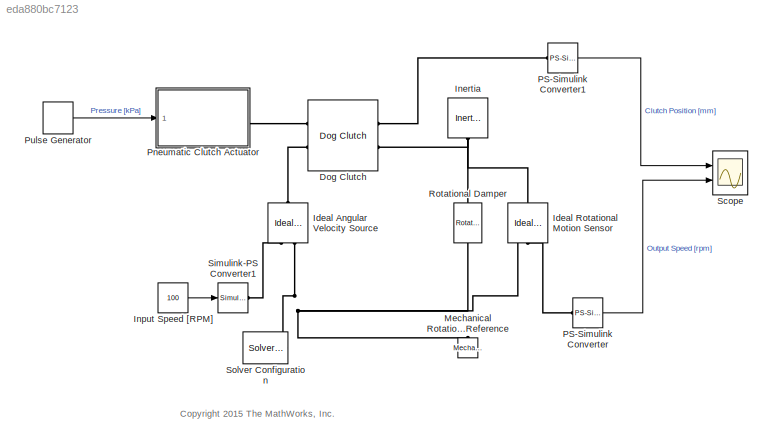
MODEL slx_eda880bc7123
KIND model
CONFIG AbsTol = 1e-3
CONFIG FixedStep = auto
CONFIG MaxStep = auto
CONFIG MinStep = auto
CONFIG RelTol = 1e-3
CONFIG SampleTimeConstraint = Unconstrained
CONFIG Solver = ode23t
CONFIG SolverMode = Auto
CONFIG SolverName = ode23t
CONFIG StartTime = 0.0
CONFIG StopTime = 10.0
BLOCK [Reference] Dog Clutch  REF=sdl_lib/Clutches/Dog Clutch
  ClassName = Simscape variant
  ComponentPath = sdl.clutches.dog_clutch
  ComponentVariantNames = Mechanical port shift linkage, Physical signal position input
  ComponentVariants = sdl.clutches.dog_clutch, sdl.clutches.dog_clutch_position_input
  LogSimulationData = off
  Ports = [0, 0, 0, 0, 0, 2, 2]
  SchemaVersion = 1
  SourceBlock = sdl_lib/Clutches/Dog Clutch
  SourceFile = sdl.clutches.dog_clutch
  SourceType = Dog Clutch
  back_stop = 1
  back_stop_unit = 1
  clutch_backlash = 10
  clutch_backlash_unit = deg
  clutch_damping = 100
  clutch_damping_unit = N*m/(rad/s)
  clutch_stiffness = 1e+7
  clutch_stiffness_unit = N*m/rad
  direction = 1
  direction_unit = 1
  engagement_overlap = 5
  engagement_overlap_unit = mm
  engagement_velocity = Inf
  engagement_velocity_unit = rad/s
  fric_coeff = 0.05
  fric_coeff_unit = 1
  init_pos = 0
  init_pos_unit = mm
  init_rel_angle = 0
  init_rel_angle_unit = deg
  initial_state_engaged = 0
  initial_state_engaged_unit = 1
  max_torque = 1000
  max_torque_unit = N*m
  model = 1
  model_unit = 1
  n_teeth = 6
  n_teeth_unit = 1
  radius = 50
  radius_unit = mm
  ring_hub_gap = 3
  ring_hub_gap_unit = mm
  tooth_height = 10
  tooth_height_unit = mm
  transl_damping = 1000
  transl_damping_unit = N/(m/s)
  transl_stiffness = 1e+6
  transl_stiffness_unit = N/m
  visc_fric_transl = 100
  visc_fric_transl_unit = N/(m/s)
BLOCK [Reference] Ideal Angular Velocity Source  REF=fl_lib/Mechanical/Mechanical Sources/Ideal Angular
Velocity Source
  ClassName = angular_velocity
  ComponentPath = foundation.mechanical.sources.angular_velocity
  ComponentVariantNames = angular_velocity
  ComponentVariants = foundation.mechanical.sources.angular_velocity
  LogSimulationData = off
  Ports = [0, 0, 0, 0, 0, 1, 2]
  SchemaVersion = 1
  SourceBlock = fl_lib/Mechanical/Mechanical Sources/Ideal Angular\nVelocity Source
  SourceFile = foundation.mechanical.sources.angular_velocity
  SourceType = Ideal Angular\nVelocity Source
BLOCK [Reference] Ideal Rotational Motion Sensor  REF=fl_lib/Mechanical/Mechanical Sensors/Ideal Rotational
Motion Sensor
  ClassName = angular_velocity
  ComponentPath = foundation.mechanical.sensors.angular_velocity
  ComponentVariantNames = angular_velocity
  ComponentVariants = foundation.mechanical.sensors.angular_velocity
  LogSimulationData = off
  Ports = [0, 0, 0, 0, 0, 1, 3]
  SchemaVersion = 1
  SourceBlock = fl_lib/Mechanical/Mechanical Sensors/Ideal Rotational\nMotion Sensor
  SourceFile = foundation.mechanical.sensors.angular_velocity
  SourceType = Ideal Rotational\nMotion Sensor
  offset = 0
  offset_unit = rad
BLOCK [Reference] Inertia  REF=fl_lib/Mechanical/Rotational Elements/Inertia
  ClassName = inertia
  ComponentPath = foundation.mechanical.rotational.inertia
  ComponentVariantNames = inertia
  ComponentVariants = foundation.mechanical.rotational.inertia
  LogSimulationData = off
  Ports = [0, 0, 0, 0, 0, 1]
  SchemaVersion = 1
  SourceBlock = fl_lib/Mechanical/Rotational Elements/Inertia
  SourceFile = foundation.mechanical.rotational.inertia
  SourceType = Inertia
  inertia = 0.1
  inertia_unit = kg*m^2
  t = 0
  t_priority = High
  t_specify = off
  t_unit = N*m
  w = 0
  w_priority = High
  w_specify = off
  w_unit = rad/s
BLOCK [Constant] Input Speed [RPM]
  Value = 100
BLOCK [Reference] Mechanical Rotational Reference  REF=fl_lib/Mechanical/Rotational Elements/Mechanical
Rotational Reference
  ClassName = reference
  ComponentPath = foundation.mechanical.rotational.reference
  ComponentVariantNames = reference
  ComponentVariants = foundation.mechanical.rotational.reference
  LogSimulationData = off
  Ports = [0, 0, 0, 0, 0, 1]
  SchemaVersion = 1
  SourceBlock = fl_lib/Mechanical/Rotational Elements/Mechanical\nRotational Reference
  SourceFile = foundation.mechanical.rotational.reference
  SourceType = Mechanical\nRotational Reference
BLOCK [Reference] PS-Simulink Converter  REF=nesl_utility/PS-Simulink
Converter
  AffineConversion = off
  Frequencies = []
  LeftPortType = input
  PhysicalDomain = network_engine_domain
  Ports = [0, 1, 0, 0, 0, 1]
  PseudoPeriodic = off
  RightPortType = output
  SourceBlock = nesl_utility/PS-Simulink\nConverter
  SourceType = PS-Simulink\nConverter
  SubClassName = ps_output
  Unit = rpm
BLOCK [Reference] PS-Simulink Converter1  REF=nesl_utility/PS-Simulink
Converter
  AffineConversion = off
  Frequencies = []
  LeftPortType = input
  PhysicalDomain = network_engine_domain
  Ports = [0, 1, 0, 0, 0, 1]
  PseudoPeriodic = off
  RightPortType = output
  SourceBlock = nesl_utility/PS-Simulink\nConverter
  SourceType = PS-Simulink\nConverter
  SubClassName = ps_output
  Unit = mm
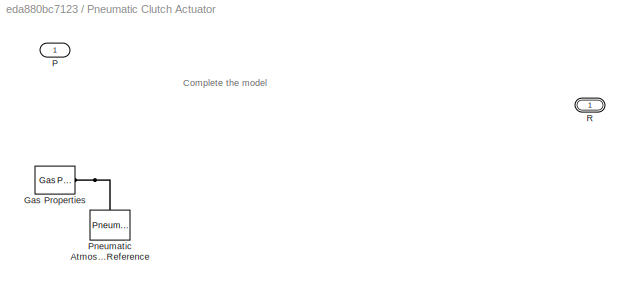
BLOCK [SubSystem] Pneumatic Clutch Actuator
  Ports = [1, 0, 0, 0, 0, 0, 1]
  RequestExecContextInheritance = off
BLOCK [Reference] Pneumatic Clutch Actuator/Gas Properties  REF=fl_lib/Pneumatic/Pneumatic Utilities/Gas Properties
  ClassName = gas_properties
  ComponentPath = foundation.pneumatic.utilities.gas_properties
  ComponentVariantNames = gas_properties
  ComponentVariants = foundation.pneumatic.utilities.gas_properties
  LogSimulationData = off
  Pa = 101325
  Pa_unit = Pa
  Ports = [0, 0, 0, 0, 0, 0, 1]
  SchemaVersion = 1
  SourceBlock = fl_lib/Pneumatic/Pneumatic Utilities/Gas Properties
  SourceFile = foundation.pneumatic.utilities.gas_properties
  SourceType = Gas Properties
  Ta = 293.15
  Ta_unit = K
  c_p = 1005
  c_p_unit = J/kg/K
  c_v = 717.95
  c_v_unit = J/kg/K
  range_error = 2
  range_error_unit = 1
  viscosity = 18.21e-6
  viscosity_unit = s*Pa
BLOCK [Inport] Pneumatic Clutch Actuator/P
  IconDisplay = Port number
BLOCK [Reference] Pneumatic Clutch Actuator/Pneumatic Atmospheric Reference  REF=fl_lib/Pneumatic/Pneumatic Elements/Pneumatic
Atmospheric
Reference
  ClassName = atmospheric_reference
  ComponentPath = foundation.pneumatic.elements.atmospheric_reference
  ComponentVariantNames = atmospheric_reference
  ComponentVariants = foundation.pneumatic.elements.atmospheric_reference
  LogSimulationData = off
  Ports = [0, 0, 0, 0, 0, 1]
  SchemaVersion = 1
  SourceBlock = fl_lib/Pneumatic/Pneumatic Elements/Pneumatic\nAtmospheric\nReference
  SourceFile = foundation.pneumatic.elements.atmospheric_reference
  SourceType = Pneumatic\nAtmospheric\nReference
BLOCK [PMIOPort] Pneumatic Clutch Actuator/R
  Port = 1
  Side = Right
BLOCK [DiscretePulseGenerator] Pulse Generator
  Period = 3
  Ports = [0, 1]
  PulseType = Time based
  PulseWidth = 50
BLOCK [Reference] Rotational Damper  REF=fl_lib/Mechanical/Rotational Elements/Rotational Damper
  ClassName = damper
  ComponentPath = foundation.mechanical.rotational.damper
  ComponentVariantNames = damper
  ComponentVariants = foundation.mechanical.rotational.damper
  D = 0.5
  D_unit = N*m/(rad/s)
  LogSimulationData = off
  Ports = [0, 0, 0, 0, 0, 1, 1]
  SchemaVersion = 1
  SourceBlock = fl_lib/Mechanical/Rotational Elements/Rotational Damper
  SourceFile = foundation.mechanical.rotational.damper
  SourceType = Rotational Damper
  t = 0
  t_priority = High
  t_specify = off
  t_unit = N*m
  w = 0
  w_priority = High
  w_specify = off
  w_unit = rad/s
BLOCK [Scope] Scope
  Floating = off
  NumInputPorts = 2
  Ports = [2]
  SaveName = ScopeData1
  TimeRange = 10
  YMax = 11~125
  YMin = -1~-25
  ZoomMode = yonly
BLOCK [Reference] Simulink-PS Converter1  REF=nesl_utility/Simulink-PS
Converter
  AffineConversion = off
  Frequencies = []
  InputFilterTimeConstant = 0.001
  InputFiltering = off
  LeftPortType = input
  NoiseDistribution = none
  NoiseParameters = []
  PhysicalDomain = network_engine_domain
  Ports = [1, 0, 0, 0, 0, 0, 1]
  PseudoPeriodic = off
  RightPortType = output
  SimscapeFilterOrder = 1
  SourceBlock = nesl_utility/Simulink-PS\nConverter
  SourceType = Simulink-PS\nConverter
  SubClassName = ps_input
  UdotUserProvided = 1
  Unit = rpm
BLOCK [Reference] Solver Configuration  REF=nesl_utility/Solver
Configuration
  AbsTol = 1e-06
  Accelerate = off
  AutomaticFiltering = on
  DelaysMemoryBudget = 1024
  DoDC = off
  DoFixedCost = off
  EnableSwitchedLinearOptims = on
  FilteringTimeConstant = 0.001
  FrequencyDomain = off
  Harmonics = []
  LeftPortType = input
  LinearAlgebra = Sparse
  LocalSolverChoice = NE_BACKWARD_EULER_ADVANCER
  LocalSolverSampleTime = 0.001
  MaxModeIter = 2
  MaxNonlinIter = 3
  MinStep = 1e-09
  NumHomotopyIterations = 100
  PhysicalDomain = network_engine_domain
  Ports = [0, 0, 0, 0, 0, 0, 1]
  Profile = off
  RelTol = 0.001
  ResidualTolerance = 1e-09
  RevertToSquareIcSolve = off
  RightPortType = generic
  SimulateNoise = off
  SourceBlock = nesl_utility/Solver\nConfiguration
  SourceType = Solver\nConfiguration
  SubClassName = solver
  ToWorkspace = off
  Tones = []
  UseCCode = off
  UseLocalSampling = off
  UseLocalSolver = off
ANNOTATION (root): <copyright redacted>
ANNOTATION Pneumatic Clutch Actuator: Complete the model
LINE Input Speed [RPM]:1 -> Simulink-PS Converter1:1
LINE PS-Simulink Converter1:1 -> Scope:1
LINE PS-Simulink Converter:1 -> Scope:2
LINE Pulse Generator:1 -> Pneumatic Clutch Actuator:1
PLINE Dog Clutch:LConn1 -- Pneumatic Clutch Actuator:RConn1
PLINE Dog Clutch:LConn2 -- Ideal Angular Velocity Source:LConn1
PLINE Dog Clutch:RConn1 -- PS-Simulink Converter1:LConn1
PNET net1: Dog Clutch:RConn2 -- Ideal Rotational Motion Sensor:LConn1 -- Inertia:LConn1 -- Rotational Damper:LConn1
PLINE Ideal Angular Velocity Source:RConn1 -- Simulink-PS Converter1:RConn1
PNET net2: Ideal Angular Velocity Source:RConn2 -- Ideal Rotational Motion Sensor:RConn1 -- Mechanical Rotational Reference:LConn1 -- Rotational Damper:RConn1 -- Solver Configuration:RConn1
PLINE Ideal Rotational Motion Sensor:RConn2 -- PS-Simulink Converter:LConn1
PLINE Pneumatic Clutch Actuator/Gas Properties:RConn1 -- Pneumatic Clutch Actuator/Pneumatic Atmospheric Reference:LConn1
note: PNET lines group multi-terminal physical nets as a canonical sorted terminal list (undirected conserving connections); 2-terminal nets keep the pairwise PLINE form
